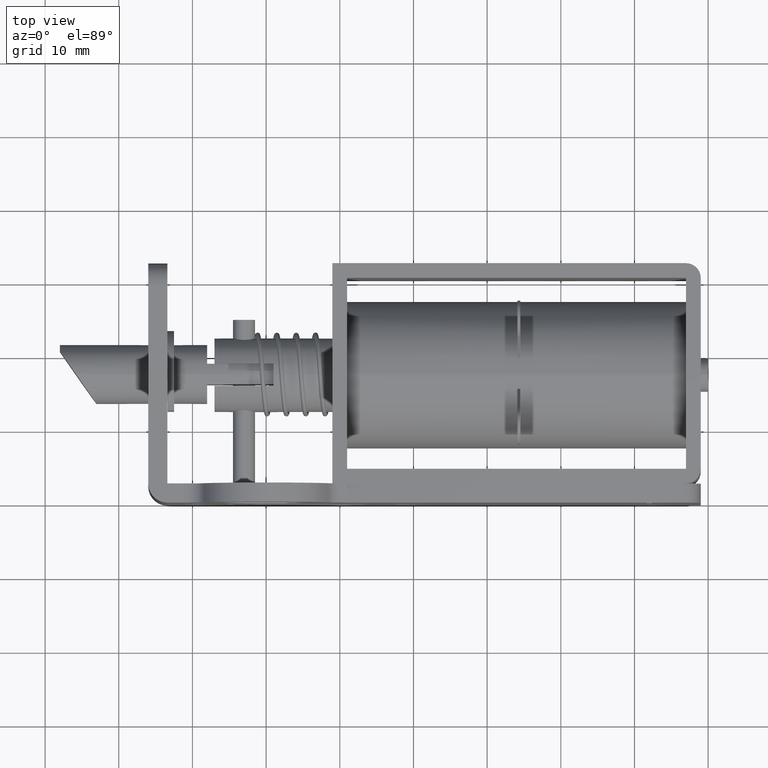
[diagram: clean part render]
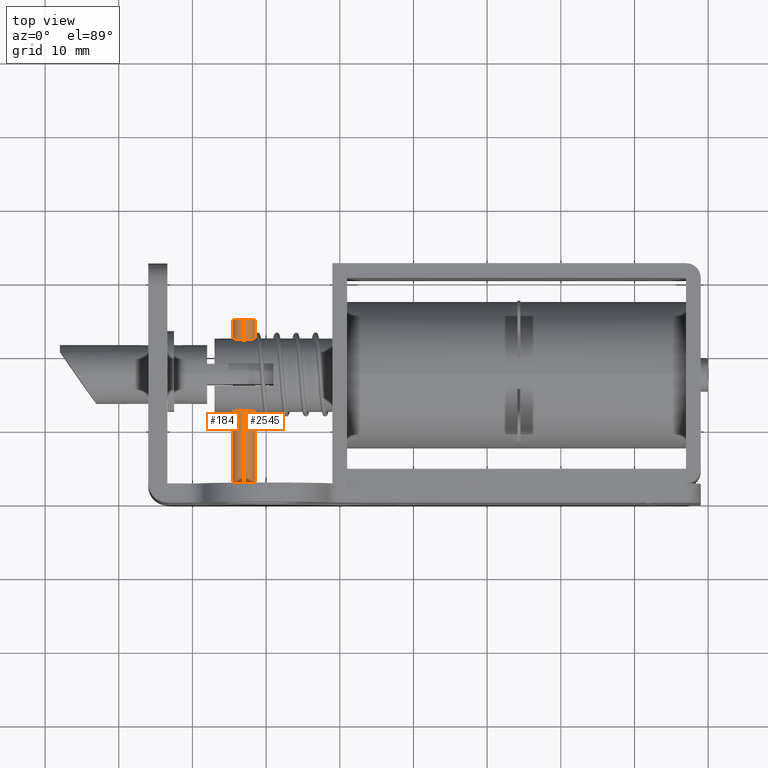
[diagram: same view with one multi-face feature highlighted, each face labeled with its STEP entity id]
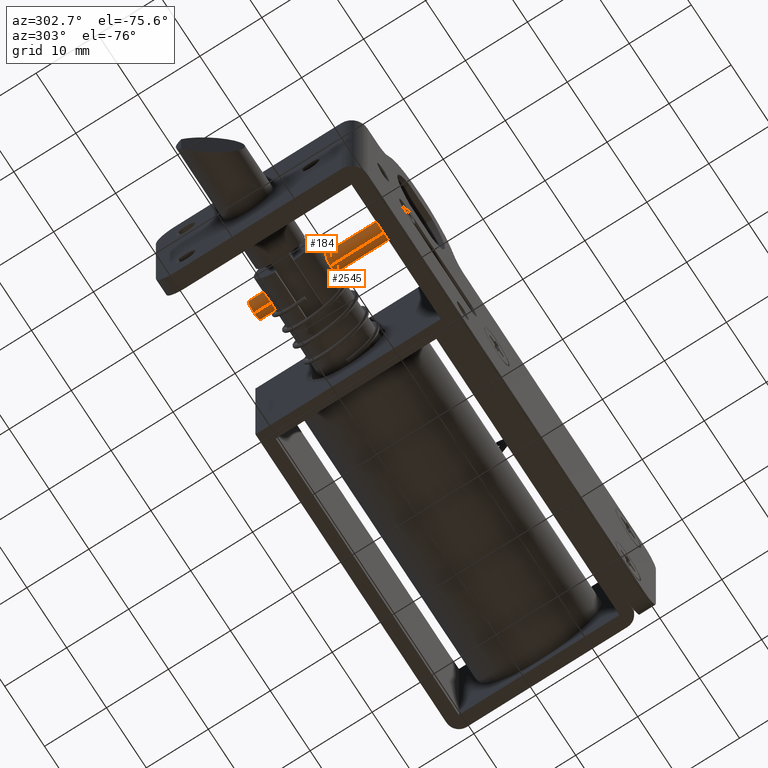
[diagram: same view with one multi-face feature highlighted, each face labeled with its STEP entity id]
A machine part, top view. The highlighted faces form ONE feature: a constant-radius fillet chain: 2 tangent blend faces with common blend radius 1.5 mm. The faces share edges in the B-rep.
A second angle (auxiliary view) of the same feature is appended — it is thin or edge-on in the first view.
Their STEP definitions:
[1] entity #2545 (Cylinder):
#427 = DIRECTION ( 'NONE',  ( 0.0000000000000000000, -1.000000000000000000, 0.0000000000000000000 ) ) ;
#468 = EDGE_CURVE ( 'NONE', #6625, #1768, #6116, .T. ) ;
#714 = AXIS2_PLACEMENT_3D ( 'NONE', #2681, #4543, #3302 ) ;
#924 = DIRECTION ( 'NONE',  ( 0.0000000000000000000, 0.0000000000000000000, -1.000000000000000000 ) ) ;
#1768 = VERTEX_POINT ( 'NONE', #7408 ) ;
#1864 = ORIENTED_EDGE ( 'NONE', *, *, #4008, .T. ) ;
#1968 = ORIENTED_EDGE ( 'NONE', *, *, #2930, .F. ) ;
#2003 = DIRECTION ( 'NONE',  ( 0.0000000000000000000, -1.000000000000000000, 0.0000000000000000000 ) ) ;
#2335 = VERTEX_POINT ( 'NONE', #7437 ) ;
#2545 = ADVANCED_FACE ( 'NONE', ( #4601 ), #4229, .T. ) ;
#2681 = CARTESIAN_POINT ( 'NONE',  ( -2.999999999999805000, 0.0000000000000000000, -11.00000000000000000 ) ) ;
#2930 = EDGE_CURVE ( 'NONE', #2335, #7724, #3924, .T. ) ;
#3011 = AXIS2_PLACEMENT_3D ( 'NONE', #3102, #7346, #3715 ) ;
#3102 = CARTESIAN_POINT ( 'NONE',  ( -2.999999999999805000, 8.734572304233379700E-016, -11.00000000000000000 ) ) ;
#3302 = DIRECTION ( 'NONE',  ( 0.0000000000000000000, 0.0000000000000000000, -1.000000000000000000 ) ) ;
#3715 = DIRECTION ( 'NONE',  ( 0.0000000000000000000, 0.0000000000000000000, -1.000000000000000000 ) ) ;
#3810 = CARTESIAN_POINT ( 'NONE',  ( -2.999999999999805000, 0.0000000000000000000, -9.500000000000000000 ) ) ;
#3822 = LINE ( 'NONE', #3810, #6857 ) ;
#3924 = CIRCLE ( 'NONE', #3011, 1.499999999999999600 ) ;
#4008 = EDGE_CURVE ( 'NONE', #1768, #7724, #3822, .T. ) ;
#4229 = CYLINDRICAL_SURFACE ( 'NONE', #714, 1.499999999999999600 ) ;
#4496 = ORIENTED_EDGE ( 'NONE', *, *, #6457, .F. ) ;
#4543 = DIRECTION ( 'NONE',  ( 0.0000000000000000000, -1.000000000000000000, 0.0000000000000000000 ) ) ;
#4601 = FACE_OUTER_BOUND ( 'NONE', #5237, .T. ) ;
#5237 = EDGE_LOOP ( 'NONE', ( #6604, #1864, #1968, #4496 ) ) ;
#5510 = CARTESIAN_POINT ( 'NONE',  ( -2.999999999999805000, 25.00000000000000000, -11.00000000000000000 ) ) ;
#5807 = DIRECTION ( 'NONE',  ( 0.0000000000000000000, -1.000000000000000000, 0.0000000000000000000 ) ) ;
#6116 = CIRCLE ( 'NONE', #6503, 1.499999999999999600 ) ;
#6196 = CARTESIAN_POINT ( 'NONE',  ( -2.999999999999805000, 8.734572304233379700E-016, -9.500000000000000000 ) ) ;
#6457 = EDGE_CURVE ( 'NONE', #6625, #2335, #7549, .T. ) ;
#6503 = AXIS2_PLACEMENT_3D ( 'NONE', #5510, #5807, #924 ) ;
#6604 = ORIENTED_EDGE ( 'NONE', *, *, #468, .T. ) ;
#6625 = VERTEX_POINT ( 'NONE', #7859 ) ;
#6857 = VECTOR ( 'NONE', #2003, 1000.000000000000000 ) ;
#7346 = DIRECTION ( 'NONE',  ( 0.0000000000000000000, -1.000000000000000000, 0.0000000000000000000 ) ) ;
#7375 = VECTOR ( 'NONE', #427, 1000.000000000000000 ) ;
#7408 = CARTESIAN_POINT ( 'NONE',  ( -2.999999999999805000, 25.00000000000000000, -9.500000000000000000 ) ) ;
#7437 = CARTESIAN_POINT ( 'NONE',  ( -2.999999999999805000, 8.734572304233379700E-016, -12.49999999999999800 ) ) ;
#7549 = LINE ( 'NONE', #7699, #7375 ) ;
#7699 = CARTESIAN_POINT ( 'NONE',  ( -2.999999999999805000, 0.0000000000000000000, -12.49999999999999800 ) ) ;
#7724 = VERTEX_POINT ( 'NONE', #6196 ) ;
#7859 = CARTESIAN_POINT ( 'NONE',  ( -2.999999999999805000, 25.00000000000000000, -12.49999999999999800 ) ) ;
[2] entity #184 (Cylinder):
#12 = CIRCLE ( 'NONE', #4472, 1.499999999999999600 ) ;
#46 = ORIENTED_EDGE ( 'NONE', *, *, #5457, .T. ) ;
#184 = ADVANCED_FACE ( 'NONE', ( #6200 ), #1351, .T. ) ;
#427 = DIRECTION ( 'NONE',  ( 0.0000000000000000000, -1.000000000000000000, 0.0000000000000000000 ) ) ;
#435 = EDGE_CURVE ( 'NONE', #7724, #2335, #12, .T. ) ;
#1351 = CYLINDRICAL_SURFACE ( 'NONE', #5442, 1.499999999999999600 ) ;
#1768 = VERTEX_POINT ( 'NONE', #7408 ) ;
#1799 = CARTESIAN_POINT ( 'NONE',  ( -2.999999999999805000, 0.0000000000000000000, -11.00000000000000000 ) ) ;
#2003 = DIRECTION ( 'NONE',  ( 0.0000000000000000000, -1.000000000000000000, 0.0000000000000000000 ) ) ;
#2030 = ORIENTED_EDGE ( 'NONE', *, *, #6457, .T. ) ;
#2335 = VERTEX_POINT ( 'NONE', #7437 ) ;
#3376 = ORIENTED_EDGE ( 'NONE', *, *, #4008, .F. ) ;
#3396 = CARTESIAN_POINT ( 'NONE',  ( -2.999999999999805000, 25.00000000000000000, -11.00000000000000000 ) ) ;
#3547 = DIRECTION ( 'NONE',  ( 0.0000000000000000000, 0.0000000000000000000, -1.000000000000000000 ) ) ;
#3658 = DIRECTION ( 'NONE',  ( 0.0000000000000000000, -1.000000000000000000, 0.0000000000000000000 ) ) ;
#3689 = DIRECTION ( 'NONE',  ( 0.0000000000000000000, -1.000000000000000000, 0.0000000000000000000 ) ) ;
#3810 = CARTESIAN_POINT ( 'NONE',  ( -2.999999999999805000, 0.0000000000000000000, -9.500000000000000000 ) ) ;
#3822 = LINE ( 'NONE', #3810, #6857 ) ;
#4008 = EDGE_CURVE ( 'NONE', #1768, #7724, #3822, .T. ) ;
#4026 = DIRECTION ( 'NONE',  ( 0.0000000000000000000, 0.0000000000000000000, -1.000000000000000000 ) ) ;
#4102 = AXIS2_PLACEMENT_3D ( 'NONE', #3396, #7633, #4026 ) ;
#4287 = CARTESIAN_POINT ( 'NONE',  ( -2.999999999999805000, 8.734572304233379700E-016, -11.00000000000000000 ) ) ;
#4387 = CIRCLE ( 'NONE', #4102, 1.499999999999999600 ) ;
#4472 = AXIS2_PLACEMENT_3D ( 'NONE', #4287, #3658, #6313 ) ;
#5442 = AXIS2_PLACEMENT_3D ( 'NONE', #1799, #3689, #3547 ) ;
#5457 = EDGE_CURVE ( 'NONE', #1768, #6625, #4387, .T. ) ;
#5778 = EDGE_LOOP ( 'NONE', ( #3376, #46, #2030, #6424 ) ) ;
#6196 = CARTESIAN_POINT ( 'NONE',  ( -2.999999999999805000, 8.734572304233379700E-016, -9.500000000000000000 ) ) ;
#6200 = FACE_OUTER_BOUND ( 'NONE', #5778, .T. ) ;
#6313 = DIRECTION ( 'NONE',  ( 0.0000000000000000000, 0.0000000000000000000, -1.000000000000000000 ) ) ;
#6424 = ORIENTED_EDGE ( 'NONE', *, *, #435, .F. ) ;
#6457 = EDGE_CURVE ( 'NONE', #6625, #2335, #7549, .T. ) ;
#6625 = VERTEX_POINT ( 'NONE', #7859 ) ;
#6857 = VECTOR ( 'NONE', #2003, 1000.000000000000000 ) ;
#7375 = VECTOR ( 'NONE', #427, 1000.000000000000000 ) ;
#7408 = CARTESIAN_POINT ( 'NONE',  ( -2.999999999999805000, 25.00000000000000000, -9.500000000000000000 ) ) ;
#7437 = CARTESIAN_POINT ( 'NONE',  ( -2.999999999999805000, 8.734572304233379700E-016, -12.49999999999999800 ) ) ;
#7549 = LINE ( 'NONE', #7699, #7375 ) ;
#7633 = DIRECTION ( 'NONE',  ( 0.0000000000000000000, -1.000000000000000000, 0.0000000000000000000 ) ) ;
#7699 = CARTESIAN_POINT ( 'NONE',  ( -2.999999999999805000, 0.0000000000000000000, -12.49999999999999800 ) ) ;
#7724 = VERTEX_POINT ( 'NONE', #6196 ) ;
#7859 = CARTESIAN_POINT ( 'NONE',  ( -2.999999999999805000, 25.00000000000000000, -12.49999999999999800 ) ) ;